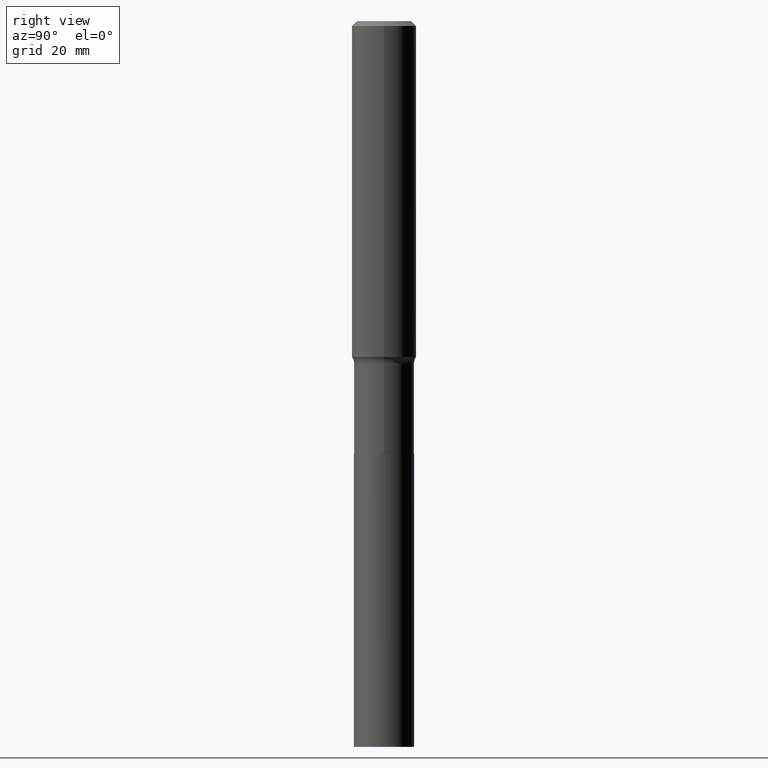
[diagram: clean part render]
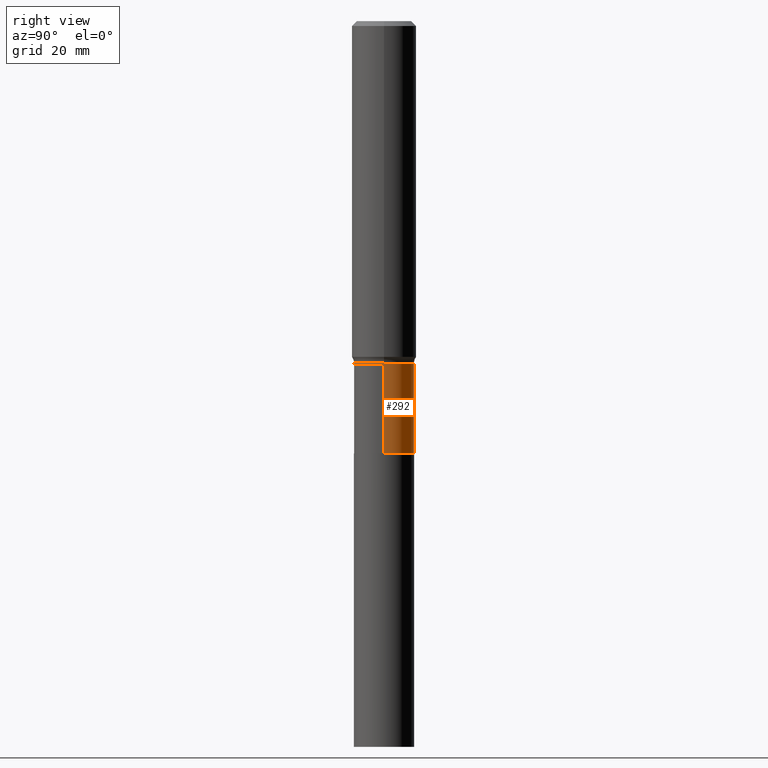
[diagram: same view with one face highlighted and labeled with its STEP entity id]
A machine part, right view. The second image highlights one B-rep face of the part: STEP entity #292.
In plain terms, the highlighted cylindrical surface (edge-blend (fillet) strip) has radius 5.5994 mm, axis along (-0, 0, 1).
Its self-contained STEP definition (entity closure, byte-faithful):
#11 = ORIENTED_EDGE ( 'NONE', *, *, #431, .T. ) ;
#13 = AXIS2_PLACEMENT_3D ( 'NONE', #311, #298, #128 ) ;
#16 = VERTEX_POINT ( 'NONE', #91 ) ;
#36 = DIRECTION ( 'NONE',  ( -2.445468806185136877E-29, 3.491481338843145188E-15, 1.000000000000000000 ) ) ;
#47 = DIRECTION ( 'NONE',  ( -2.445468806185136597E-29, 3.491481338843145583E-15, 1.000000000000000000 ) ) ;
#55 = ORIENTED_EDGE ( 'NONE', *, *, #199, .F. ) ;
#71 = CARTESIAN_POINT ( 'NONE',  ( 0.2204499999999999238, -1.029218869064181876E-14, -2.506900000000000350 ) ) ;
#91 = CARTESIAN_POINT ( 'NONE',  ( -0.2204500000000000071, -8.336147912243791745E-15, -3.165500000000000203 ) ) ;
#94 = LINE ( 'NONE', #385, #255 ) ;
#120 = VERTEX_POINT ( 'NONE', #71 ) ;
#128 = DIRECTION ( 'NONE',  ( 1.000000000000000000, -6.982962677686262766E-15, 0.000000000000000000 ) ) ;
#137 = CARTESIAN_POINT ( 'NONE',  ( 6.130545750225519686E-29, -8.752794568345882481E-15, -2.506900000000000350 ) ) ;
#155 = VERTEX_POINT ( 'NONE', #213 ) ;
#157 = EDGE_CURVE ( 'NONE', #16, #155, #94, .T. ) ;
#174 = DIRECTION ( 'NONE',  ( -2.445468806185136597E-29, 3.491481338843145583E-15, 1.000000000000000000 ) ) ;
#181 = AXIS2_PLACEMENT_3D ( 'NONE', #293, #47, #365 ) ;
#199 = EDGE_CURVE ( 'NONE', #120, #155, #328, .T. ) ;
#213 = CARTESIAN_POINT ( 'NONE',  ( -0.2204499999999999238, -8.336147912243791745E-15, -2.506900000000000350 ) ) ;
#223 = CARTESIAN_POINT ( 'NONE',  ( 0.2204500000000000071, -1.259167830040391635E-14, -3.165500000000000203 ) ) ;
#255 = VECTOR ( 'NONE', #36, 39.37007874015748143 ) ;
#259 = DIRECTION ( 'NONE',  ( -2.445468806185136877E-29, 3.491481338843145188E-15, 1.000000000000000000 ) ) ;
#280 = DIRECTION ( 'NONE',  ( 1.000000000000000000, -6.982962677686265133E-15, 0.000000000000000000 ) ) ;
#288 = VECTOR ( 'NONE', #259, 39.37007874015748143 ) ;
#292 = ADVANCED_FACE ( 'NONE', ( #334 ), #406, .T. ) ;
#293 = CARTESIAN_POINT ( 'NONE',  ( 0.000000000000000000, 0.000000000000000000, 0.000000000000000000 ) ) ;
#296 = CARTESIAN_POINT ( 'NONE',  ( 0.2204499999999999793, -1.539394122295937264E-15, 1.074953170224213743E-29 ) ) ;
#298 = DIRECTION ( 'NONE',  ( -2.445468806185136597E-29, 3.491481338843145583E-15, 1.000000000000000000 ) ) ;
#299 = EDGE_LOOP ( 'NONE', ( #11, #458, #55, #341 ) ) ;
#311 = CARTESIAN_POINT ( 'NONE',  ( 7.741131505979050848E-29, -1.105228417810798007E-14, -3.165500000000000203 ) ) ;
#328 = CIRCLE ( 'NONE', #464, 0.2204499999999999238 ) ;
#334 = FACE_OUTER_BOUND ( 'NONE', #299, .T. ) ;
#341 = ORIENTED_EDGE ( 'NONE', *, *, #342, .F. ) ;
#342 = EDGE_CURVE ( 'NONE', #390, #120, #364, .T. ) ;
#364 = LINE ( 'NONE', #296, #288 ) ;
#365 = DIRECTION ( 'NONE',  ( 1.000000000000000000, -6.982962677686265922E-15, 4.876176775795934672E-29 ) ) ;
#368 = CIRCLE ( 'NONE', #13, 0.2204500000000000071 ) ;
#385 = CARTESIAN_POINT ( 'NONE',  ( -0.2204499999999999793, 1.566391460983140713E-15, -1.084379240646693833E-29 ) ) ;
#390 = VERTEX_POINT ( 'NONE', #223 ) ;
#406 = CYLINDRICAL_SURFACE ( 'NONE', #181, 0.2204499999999999793 ) ;
#431 = EDGE_CURVE ( 'NONE', #390, #16, #368, .T. ) ;
#458 = ORIENTED_EDGE ( 'NONE', *, *, #157, .T. ) ;
#464 = AXIS2_PLACEMENT_3D ( 'NONE', #137, #174, #280 ) ;